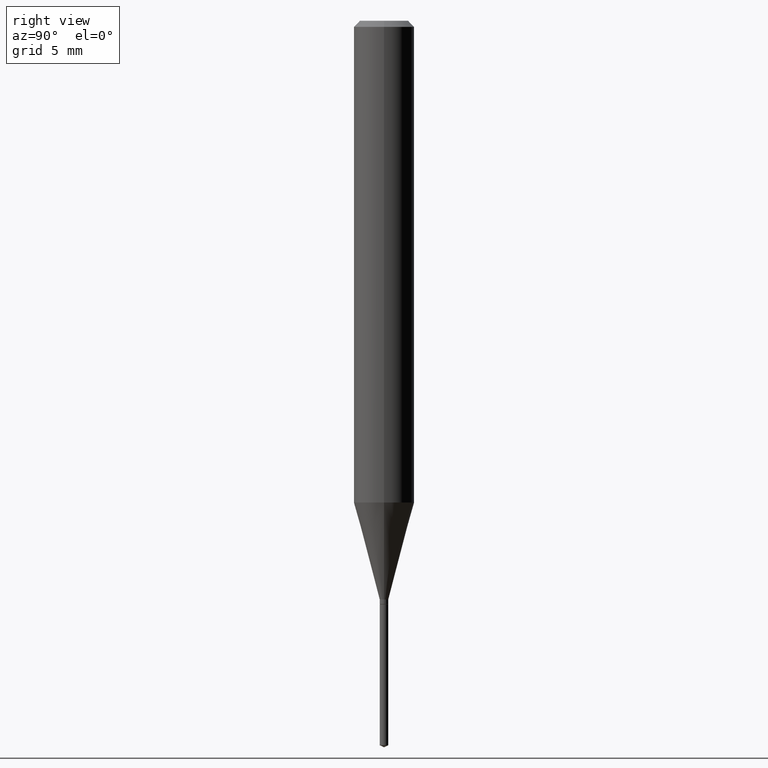
[diagram: clean part render]
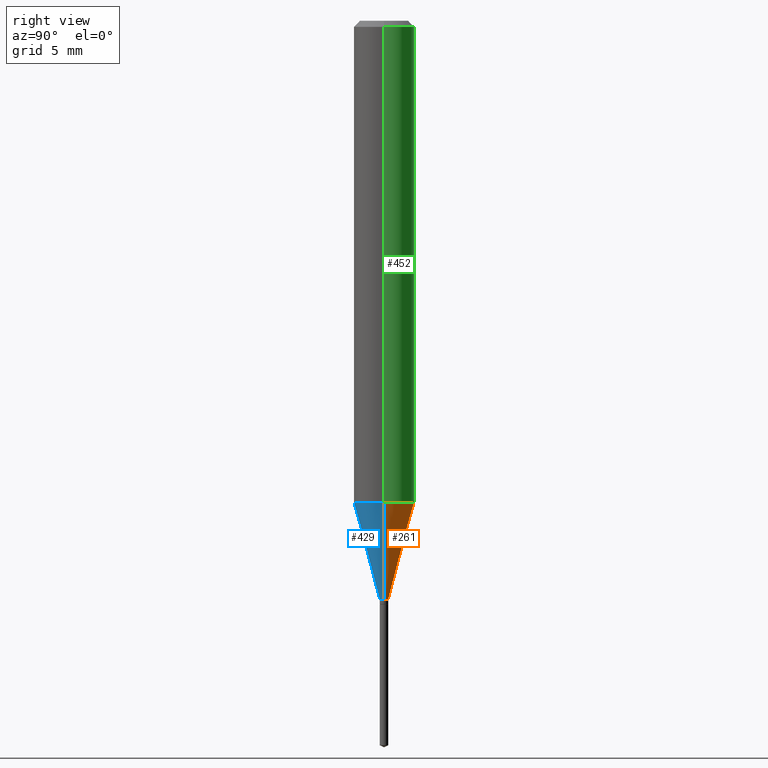
[diagram: same view with three faces highlighted in distinct colors, each labeled with its STEP entity id]
A machine part, right view with three faces highlighted in distinct colors.
Their STEP definitions:

[orange] entity #261 — the highlighted conical surface has half-angle 15 deg.
#6 = DIRECTION ( 'NONE',  ( -2.445468806185136597E-29, 3.491481338843145583E-15, 1.000000000000000000 ) ) ;
#10 = DIRECTION ( 'NONE',  ( -2.445468806185136597E-29, 3.491481338843145583E-15, 1.000000000000000000 ) ) ;
#19 = AXIS2_PLACEMENT_3D ( 'NONE', #213, #255, #168 ) ;
#28 = DIRECTION ( 'NONE',  ( 0.2588190451025211836, 1.565188264969622559E-15, 0.9659258262890679791 ) ) ;
#29 = CONICAL_SURFACE ( 'NONE', #233, 0.008850000000000000228, 0.2617993877991499074 ) ;
#52 = EDGE_CURVE ( 'NONE', #433, #470, #482, .T. ) ;
#74 = CARTESIAN_POINT ( 'NONE',  ( 0.06250000000000012490, -3.909675171772509851E-15, -0.9947754741739297524 ) ) ;
#83 = DIRECTION ( 'NONE',  ( -0.2588190451025211836, 5.211531920934547886E-15, 0.9659258262890679791 ) ) ;
#91 = VERTEX_POINT ( 'NONE', #390 ) ;
#110 = AXIS2_PLACEMENT_3D ( 'NONE', #162, #6, #468 ) ;
#117 = VECTOR ( 'NONE', #28, 39.37007874015748854 ) ;
#128 = EDGE_CURVE ( 'NONE', #430, #91, #322, .T. ) ;
#160 = CARTESIAN_POINT ( 'NONE',  ( -0.008850000000000000228, -4.126021704162294828E-15, -1.195000000000000062 ) ) ;
#162 = CARTESIAN_POINT ( 'NONE',  ( 2.432692391250373077E-29, -3.473240004417117392E-15, -0.9947754741739297524 ) ) ;
#168 = DIRECTION ( 'NONE',  ( 1.000000000000000000, -6.982962677686271444E-15, 0.000000000000000000 ) ) ;
#188 = ORIENTED_EDGE ( 'NONE', *, *, #241, .F. ) ;
#189 = CARTESIAN_POINT ( 'NONE',  ( 0.008850000000000000228, -4.234119419615082783E-15, -1.195000000000000062 ) ) ;
#204 = FACE_OUTER_BOUND ( 'NONE', #440, .T. ) ;
#213 = CARTESIAN_POINT ( 'NONE',  ( 2.922335223391238368E-29, -4.172320199917559190E-15, -1.195000000000000062 ) ) ;
#226 = ORIENTED_EDGE ( 'NONE', *, *, #231, .T. ) ;
#231 = EDGE_CURVE ( 'NONE', #433, #430, #364, .T. ) ;
#233 = AXIS2_PLACEMENT_3D ( 'NONE', #395, #10, #280 ) ;
#241 = EDGE_CURVE ( 'NONE', #470, #91, #353, .T. ) ;
#255 = DIRECTION ( 'NONE',  ( -2.445468806185136597E-29, 3.491481338843145583E-15, 1.000000000000000000 ) ) ;
#261 = ADVANCED_FACE ( 'NONE', ( #204 ), #29, .T. ) ;
#280 = DIRECTION ( 'NONE',  ( 1.000000000000000000, -6.982962677686271444E-15, 0.000000000000000000 ) ) ;
#281 = CARTESIAN_POINT ( 'NONE',  ( -0.008850000000000000228, -4.109437167802790150E-15, -1.195000000000000062 ) ) ;
#315 = CARTESIAN_POINT ( 'NONE',  ( 0.008850000000000000228, -4.234119419615082783E-15, -1.195000000000000062 ) ) ;
#318 = VECTOR ( 'NONE', #83, 39.37007874015748854 ) ;
#322 = LINE ( 'NONE', #281, #318 ) ;
#330 = ORIENTED_EDGE ( 'NONE', *, *, #128, .T. ) ;
#337 = ORIENTED_EDGE ( 'NONE', *, *, #52, .F. ) ;
#353 = CIRCLE ( 'NONE', #110, 0.06250000000000012490 ) ;
#364 = CIRCLE ( 'NONE', #19, 0.008850000000000000228 ) ;
#390 = CARTESIAN_POINT ( 'NONE',  ( -0.06250000000000012490, -3.029150794567053198E-15, -0.9947754741739297524 ) ) ;
#395 = CARTESIAN_POINT ( 'NONE',  ( 2.922335223391238368E-29, -4.172320199917559190E-15, -1.195000000000000062 ) ) ;
#430 = VERTEX_POINT ( 'NONE', #160 ) ;
#433 = VERTEX_POINT ( 'NONE', #315 ) ;
#440 = EDGE_LOOP ( 'NONE', ( #226, #330, #188, #337 ) ) ;
#468 = DIRECTION ( 'NONE',  ( 1.000000000000000000, -6.982962677686264344E-15, 0.000000000000000000 ) ) ;
#470 = VERTEX_POINT ( 'NONE', #74 ) ;
#482 = LINE ( 'NONE', #189, #117 ) ;

[blue] entity #429 — the highlighted conical surface has half-angle 15 deg.
#8 = AXIS2_PLACEMENT_3D ( 'NONE', #368, #230, #334 ) ;
#26 = ORIENTED_EDGE ( 'NONE', *, *, #341, .T. ) ;
#28 = DIRECTION ( 'NONE',  ( 0.2588190451025211836, 1.565188264969622559E-15, 0.9659258262890679791 ) ) ;
#30 = DIRECTION ( 'NONE',  ( -2.445468806185136597E-29, 3.491481338843145583E-15, 1.000000000000000000 ) ) ;
#37 = AXIS2_PLACEMENT_3D ( 'NONE', #104, #437, #372 ) ;
#48 = AXIS2_PLACEMENT_3D ( 'NONE', #308, #30, #345 ) ;
#52 = EDGE_CURVE ( 'NONE', #433, #470, #482, .T. ) ;
#74 = CARTESIAN_POINT ( 'NONE',  ( 0.06250000000000012490, -3.909675171772509851E-15, -0.9947754741739297524 ) ) ;
#83 = DIRECTION ( 'NONE',  ( -0.2588190451025211836, 5.211531920934547886E-15, 0.9659258262890679791 ) ) ;
#91 = VERTEX_POINT ( 'NONE', #390 ) ;
#104 = CARTESIAN_POINT ( 'NONE',  ( 2.922335223391238368E-29, -4.172320199917559190E-15, -1.195000000000000062 ) ) ;
#117 = VECTOR ( 'NONE', #28, 39.37007874015748854 ) ;
#128 = EDGE_CURVE ( 'NONE', #430, #91, #322, .T. ) ;
#138 = EDGE_LOOP ( 'NONE', ( #228, #26, #300, #180 ) ) ;
#141 = FACE_OUTER_BOUND ( 'NONE', #138, .T. ) ;
#160 = CARTESIAN_POINT ( 'NONE',  ( -0.008850000000000000228, -4.126021704162294828E-15, -1.195000000000000062 ) ) ;
#161 = CIRCLE ( 'NONE', #8, 0.008850000000000000228 ) ;
#180 = ORIENTED_EDGE ( 'NONE', *, *, #350, .F. ) ;
#187 = CIRCLE ( 'NONE', #48, 0.06250000000000012490 ) ;
#189 = CARTESIAN_POINT ( 'NONE',  ( 0.008850000000000000228, -4.234119419615082783E-15, -1.195000000000000062 ) ) ;
#228 = ORIENTED_EDGE ( 'NONE', *, *, #128, .F. ) ;
#230 = DIRECTION ( 'NONE',  ( -2.445468806185136597E-29, 3.491481338843145583E-15, 1.000000000000000000 ) ) ;
#267 = CONICAL_SURFACE ( 'NONE', #37, 0.008850000000000000228, 0.2617993877991499074 ) ;
#281 = CARTESIAN_POINT ( 'NONE',  ( -0.008850000000000000228, -4.109437167802790150E-15, -1.195000000000000062 ) ) ;
#300 = ORIENTED_EDGE ( 'NONE', *, *, #52, .T. ) ;
#308 = CARTESIAN_POINT ( 'NONE',  ( 2.432692391250373077E-29, -3.473240004417117392E-15, -0.9947754741739297524 ) ) ;
#315 = CARTESIAN_POINT ( 'NONE',  ( 0.008850000000000000228, -4.234119419615082783E-15, -1.195000000000000062 ) ) ;
#318 = VECTOR ( 'NONE', #83, 39.37007874015748854 ) ;
#322 = LINE ( 'NONE', #281, #318 ) ;
#334 = DIRECTION ( 'NONE',  ( 1.000000000000000000, -6.982962677686271444E-15, 0.000000000000000000 ) ) ;
#341 = EDGE_CURVE ( 'NONE', #430, #433, #161, .T. ) ;
#345 = DIRECTION ( 'NONE',  ( 1.000000000000000000, -6.982962677686264344E-15, 0.000000000000000000 ) ) ;
#350 = EDGE_CURVE ( 'NONE', #91, #470, #187, .T. ) ;
#368 = CARTESIAN_POINT ( 'NONE',  ( 2.922335223391238368E-29, -4.172320199917559190E-15, -1.195000000000000062 ) ) ;
#372 = DIRECTION ( 'NONE',  ( 1.000000000000000000, -6.982962677686271444E-15, 0.000000000000000000 ) ) ;
#390 = CARTESIAN_POINT ( 'NONE',  ( -0.06250000000000012490, -3.029150794567053198E-15, -0.9947754741739297524 ) ) ;
#429 = ADVANCED_FACE ( 'NONE', ( #141 ), #267, .T. ) ;
#430 = VERTEX_POINT ( 'NONE', #160 ) ;
#433 = VERTEX_POINT ( 'NONE', #315 ) ;
#437 = DIRECTION ( 'NONE',  ( -2.445468806185136597E-29, 3.491481338843145583E-15, 1.000000000000000000 ) ) ;
#470 = VERTEX_POINT ( 'NONE', #74 ) ;
#482 = LINE ( 'NONE', #189, #117 ) ;

[green] entity #452 — the highlighted cylindrical surface (edge-blend (fillet) strip) has radius 1.5875 mm, axis along (-0, 0, 1).
#6 = DIRECTION ( 'NONE',  ( -2.445468806185136597E-29, 3.491481338843145583E-15, 1.000000000000000000 ) ) ;
#20 = AXIS2_PLACEMENT_3D ( 'NONE', #118, #197, #155 ) ;
#21 = CARTESIAN_POINT ( 'NONE',  ( 0.06250000000000000000, -4.800786840909313294E-16, -0.01250000000000008570 ) ) ;
#23 = DIRECTION ( 'NONE',  ( -2.445468806185136877E-29, 3.491481338843145188E-15, 1.000000000000000000 ) ) ;
#59 = ORIENTED_EDGE ( 'NONE', *, *, #313, .F. ) ;
#74 = CARTESIAN_POINT ( 'NONE',  ( 0.06250000000000012490, -3.909675171772509851E-15, -0.9947754741739297524 ) ) ;
#91 = VERTEX_POINT ( 'NONE', #390 ) ;
#101 = ORIENTED_EDGE ( 'NONE', *, *, #422, .T. ) ;
#110 = AXIS2_PLACEMENT_3D ( 'NONE', #162, #6, #468 ) ;
#118 = CARTESIAN_POINT ( 'NONE',  ( 0.000000000000000000, 0.000000000000000000, 0.000000000000000000 ) ) ;
#119 = CIRCLE ( 'NONE', #311, 0.06250000000000000000 ) ;
#155 = DIRECTION ( 'NONE',  ( 1.000000000000000000, -6.982962677686267499E-15, 4.876176775795936353E-29 ) ) ;
#158 = CYLINDRICAL_SURFACE ( 'NONE', #20, 0.06250000000000005551 ) ;
#162 = CARTESIAN_POINT ( 'NONE',  ( 2.432692391250373077E-29, -3.473240004417117392E-15, -0.9947754741739297524 ) ) ;
#185 = CARTESIAN_POINT ( 'NONE',  ( 3.056836007731441853E-31, -4.364351673553962300E-17, -0.01250000000000008570 ) ) ;
#197 = DIRECTION ( 'NONE',  ( -2.445468806185136597E-29, 3.491481338843145583E-15, 1.000000000000000000 ) ) ;
#201 = VECTOR ( 'NONE', #23, 39.37007874015748143 ) ;
#203 = VECTOR ( 'NONE', #484, 39.37007874015748143 ) ;
#211 = VERTEX_POINT ( 'NONE', #21 ) ;
#227 = LINE ( 'NONE', #476, #203 ) ;
#236 = FACE_OUTER_BOUND ( 'NONE', #439, .T. ) ;
#241 = EDGE_CURVE ( 'NONE', #470, #91, #353, .T. ) ;
#263 = ORIENTED_EDGE ( 'NONE', *, *, #241, .T. ) ;
#302 = LINE ( 'NONE', #412, #201 ) ;
#311 = AXIS2_PLACEMENT_3D ( 'NONE', #185, #342, #338 ) ;
#313 = EDGE_CURVE ( 'NONE', #470, #211, #302, .T. ) ;
#338 = DIRECTION ( 'NONE',  ( 1.000000000000000000, -6.982962677686266711E-15, 0.000000000000000000 ) ) ;
#342 = DIRECTION ( 'NONE',  ( -2.445468806185136597E-29, 3.491481338843145583E-15, 1.000000000000000000 ) ) ;
#353 = CIRCLE ( 'NONE', #110, 0.06250000000000012490 ) ;
#384 = EDGE_CURVE ( 'NONE', #211, #402, #119, .T. ) ;
#390 = CARTESIAN_POINT ( 'NONE',  ( -0.06250000000000012490, -3.029150794567053198E-15, -0.9947754741739297524 ) ) ;
#397 = ORIENTED_EDGE ( 'NONE', *, *, #384, .F. ) ;
#402 = VERTEX_POINT ( 'NONE', #487 ) ;
#412 = CARTESIAN_POINT ( 'NONE',  ( 0.06250000000000005551, -4.364351673553921131E-16, 3.047610484872463023E-30 ) ) ;
#422 = EDGE_CURVE ( 'NONE', #91, #402, #227, .T. ) ;
#439 = EDGE_LOOP ( 'NONE', ( #263, #101, #397, #59 ) ) ;
#452 = ADVANCED_FACE ( 'NONE', ( #236 ), #158, .T. ) ;
#468 = DIRECTION ( 'NONE',  ( 1.000000000000000000, -6.982962677686264344E-15, 0.000000000000000000 ) ) ;
#470 = VERTEX_POINT ( 'NONE', #74 ) ;
#476 = CARTESIAN_POINT ( 'NONE',  ( -0.06250000000000005551, 4.440892098500630106E-16, -3.074334431409318916E-30 ) ) ;
#484 = DIRECTION ( 'NONE',  ( -2.445468806185136877E-29, 3.491481338843145188E-15, 1.000000000000000000 ) ) ;
#487 = CARTESIAN_POINT ( 'NONE',  ( -0.06250000000000000000, -1.314352550726264677E-15, -0.01250000000000008570 ) ) ;